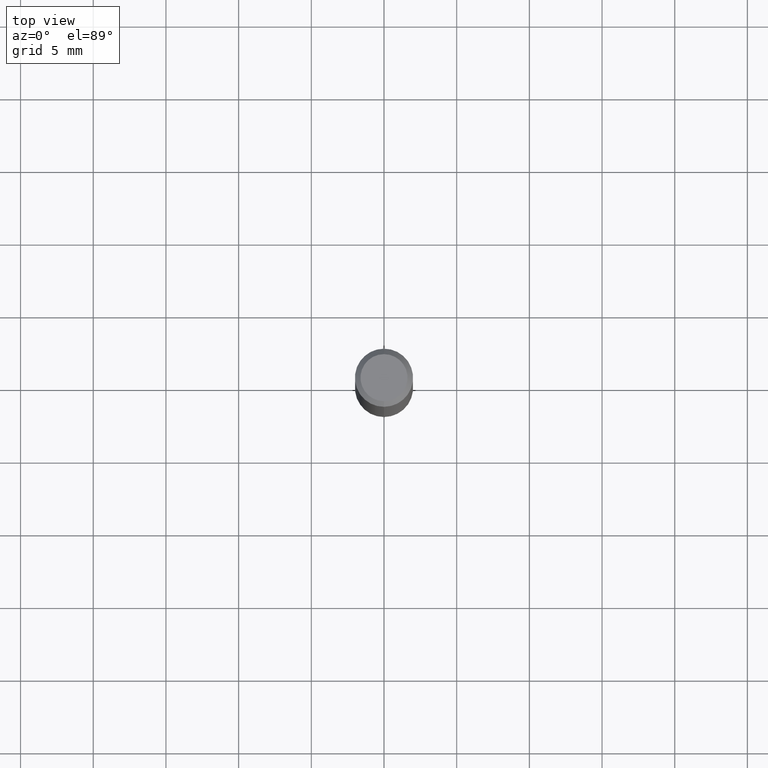
[diagram: clean part render]
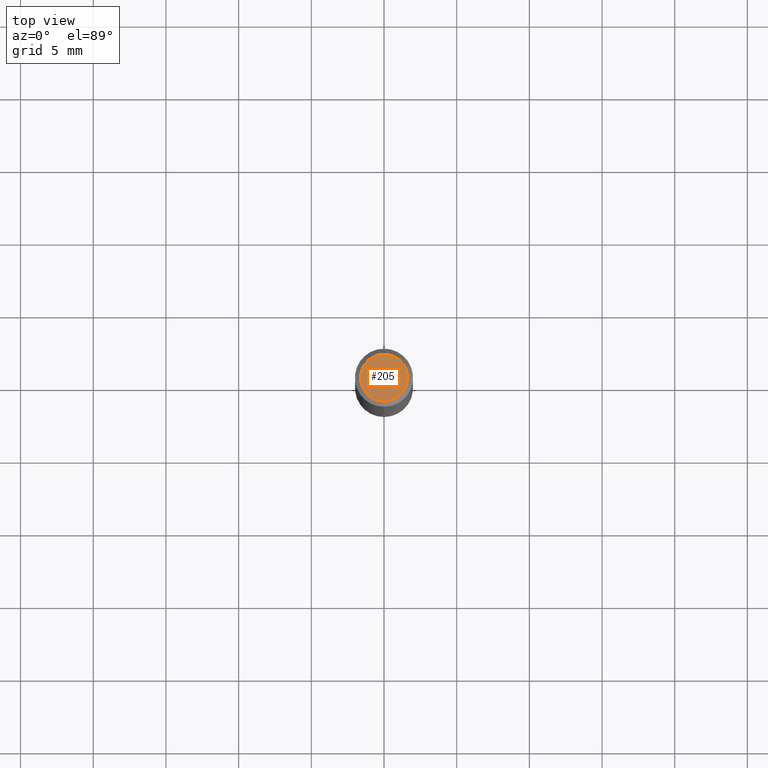
[diagram: same view with one face highlighted and labeled with its STEP entity id]
A machine part, top view. The second image highlights one B-rep face of the part: STEP entity #205.
In plain terms, the highlighted planar face has unit normal (0, -0, -1).
Its self-contained STEP definition (entity closure, byte-faithful):
#2 = CARTESIAN_POINT ( 'NONE',  ( 4.113903782286286095E-46, -5.873464679094396251E-32, -1.682241431823997072E-17 ) ) ;
#49 = PLANE ( 'NONE',  #399 ) ;
#76 = CIRCLE ( 'NONE', #492, 0.06374999999999998723 ) ;
#82 = CARTESIAN_POINT ( 'NONE',  ( 4.451638707024993845E-16, 0.06374999999999998723, -2.309912519784194220E-16 ) ) ;
#110 = ORIENTED_EDGE ( 'NONE', *, *, #232, .T. ) ;
#114 = DIRECTION ( 'NONE',  ( -6.982962677686265922E-15, -1.000000000000000000, 3.491451683439990934E-15 ) ) ;
#134 = EDGE_LOOP ( 'NONE', ( #475, #110 ) ) ;
#161 = DIRECTION ( 'NONE',  ( -2.445489514442478225E-29, 3.491451683439991329E-15, 1.000000000000000000 ) ) ;
#205 = ADVANCED_FACE ( 'NONE', ( #287 ), #49, .F. ) ;
#232 = EDGE_CURVE ( 'NONE', #384, #416, #76, .T. ) ;
#247 = DIRECTION ( 'NONE',  ( -6.982962677686265922E-15, -1.000000000000000000, 3.491451683439990934E-15 ) ) ;
#255 = AXIS2_PLACEMENT_3D ( 'NONE', #278, #439, #114 ) ;
#278 = CARTESIAN_POINT ( 'NONE',  ( 4.113903782286286095E-46, -5.873464679094396251E-32, -1.682241431823997072E-17 ) ) ;
#287 = FACE_OUTER_BOUND ( 'NONE', #134, .T. ) ;
#292 = CIRCLE ( 'NONE', #255, 0.06374999999999998723 ) ;
#354 = CARTESIAN_POINT ( 'NONE',  ( 4.975360907851465623E-16, 0.06374999999999998723, -2.394024591375393642E-16 ) ) ;
#371 = DIRECTION ( 'NONE',  ( 6.982962677686265922E-15, 1.000000000000000000, -3.491451683439991329E-15 ) ) ;
#384 = VERTEX_POINT ( 'NONE', #468 ) ;
#399 = AXIS2_PLACEMENT_3D ( 'NONE', #82, #437, #371 ) ;
#416 = VERTEX_POINT ( 'NONE', #354 ) ;
#437 = DIRECTION ( 'NONE',  ( 2.445489514442477945E-29, -3.491451683439991329E-15, -1.000000000000000000 ) ) ;
#439 = DIRECTION ( 'NONE',  ( -2.445489514442478225E-29, 3.491451683439991329E-15, 1.000000000000000000 ) ) ;
#454 = EDGE_CURVE ( 'NONE', #416, #384, #292, .T. ) ;
#468 = CARTESIAN_POINT ( 'NONE',  ( -4.888104823412212925E-16, -0.06374999999999998723, 2.057576305010594228E-16 ) ) ;
#475 = ORIENTED_EDGE ( 'NONE', *, *, #454, .T. ) ;
#492 = AXIS2_PLACEMENT_3D ( 'NONE', #2, #161, #247 ) ;